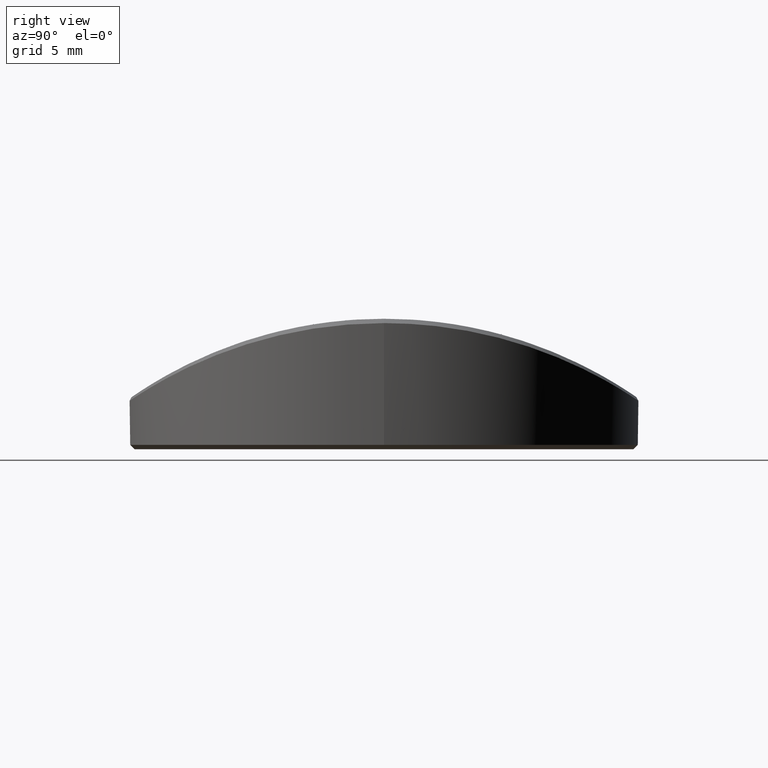
[diagram: clean part render]
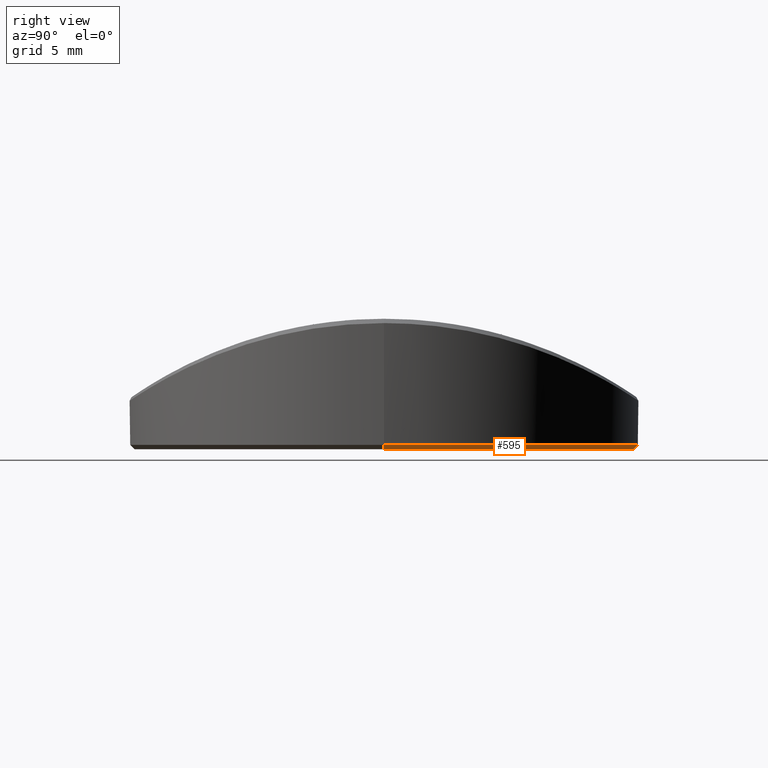
[diagram: same view with one face highlighted and labeled with its STEP entity id]
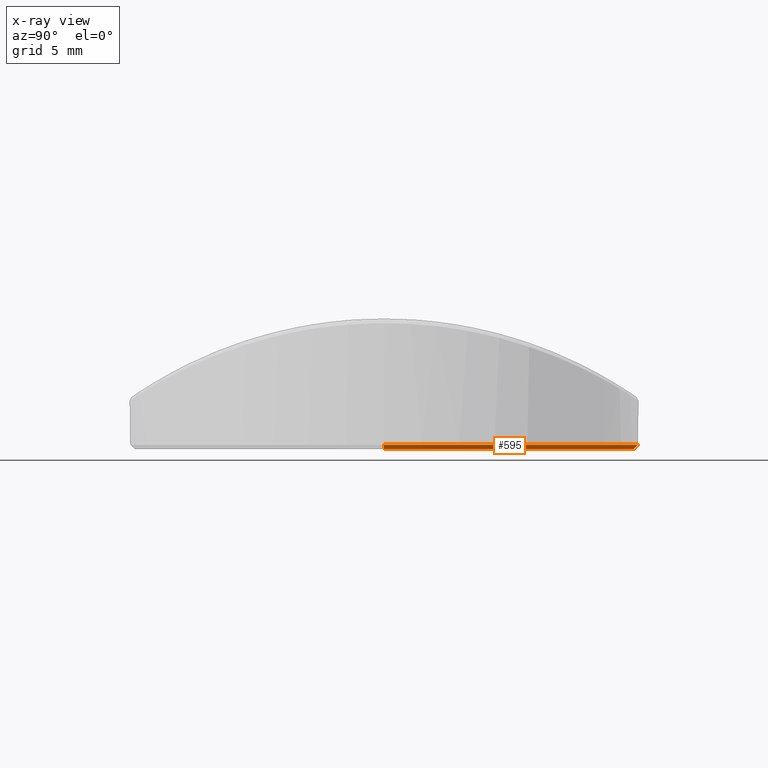
[diagram: x-ray of the same camera — body ghosted, the highlighted face saturated]
A machine part, right view. The second image highlights one B-rep face of the part: STEP entity #595.
The next image is the same camera in x-ray: the body ghosted, the highlighted face saturated — about 0% of this face is hidden behind the body in this view.
In plain terms, the highlighted conical surface has half-angle 45 deg.
Its self-contained STEP definition (entity closure, byte-faithful):
#2 = CARTESIAN_POINT ( 'NONE',  ( 0.000000000000000000, 0.000000000000000000, 0.2000000000000040079 ) ) ;
#26 = EDGE_LOOP ( 'NONE', ( #666, #1693, #457, #1291 ) ) ;
#86 = CONICAL_SURFACE ( 'NONE', #945, 11.69999999999999929, 0.7853981633974439491 ) ;
#170 = CARTESIAN_POINT ( 'NONE',  ( -11.69999999999999929, 1.432836755002403087E-15, 0.2000000000000040079 ) ) ;
#179 = CARTESIAN_POINT ( 'NONE',  ( -11.69999999999999929, 0.000000000000000000, 0.2000000000000040079 ) ) ;
#184 = FACE_OUTER_BOUND ( 'NONE', #26, .T. ) ;
#310 = CIRCLE ( 'NONE', #1788, 11.69999999999999929 ) ;
#395 = CARTESIAN_POINT ( 'NONE',  ( -11.49999999999999645, 1.420590287010929336E-15, 0.000000000000000000 ) ) ;
#457 = ORIENTED_EDGE ( 'NONE', *, *, #2012, .F. ) ;
#573 = VERTEX_POINT ( 'NONE', #1094 ) ;
#586 = VECTOR ( 'NONE', #2169, 1000.000000000000114 ) ;
#589 = CARTESIAN_POINT ( 'NONE',  ( 11.49999999999999645, 0.000000000000000000, 0.000000000000000000 ) ) ;
#595 = ADVANCED_FACE ( 'NONE', ( #184 ), #86, .T. ) ;
#663 = DIRECTION ( 'NONE',  ( 0.7071067811865443531, 0.000000000000000000, 0.7071067811865506814 ) ) ;
#666 = ORIENTED_EDGE ( 'NONE', *, *, #1566, .F. ) ;
#822 = LINE ( 'NONE', #170, #586 ) ;
#845 = LINE ( 'NONE', #2672, #2304 ) ;
#875 = VERTEX_POINT ( 'NONE', #395 ) ;
#945 = AXIS2_PLACEMENT_3D ( 'NONE', #1303, #1983, #1507 ) ;
#1050 = EDGE_CURVE ( 'NONE', #1534, #573, #845, .T. ) ;
#1094 = CARTESIAN_POINT ( 'NONE',  ( 11.69999999999999929, 1.432836755002403087E-15, 0.2000000000000040079 ) ) ;
#1141 = EDGE_CURVE ( 'NONE', #875, #1454, #822, .T. ) ;
#1291 = ORIENTED_EDGE ( 'NONE', *, *, #1050, .F. ) ;
#1303 = CARTESIAN_POINT ( 'NONE',  ( 0.000000000000000000, 0.000000000000000000, 0.2000000000000040079 ) ) ;
#1454 = VERTEX_POINT ( 'NONE', #179 ) ;
#1470 = DIRECTION ( 'NONE',  ( 1.000000000000000000, 0.000000000000000000, 0.000000000000000000 ) ) ;
#1507 = DIRECTION ( 'NONE',  ( 1.000000000000000000, 0.000000000000000000, 0.000000000000000000 ) ) ;
#1512 = DIRECTION ( 'NONE',  ( -0.000000000000000000, -0.000000000000000000, 1.000000000000000000 ) ) ;
#1534 = VERTEX_POINT ( 'NONE', #589 ) ;
#1566 = EDGE_CURVE ( 'NONE', #875, #1534, #1696, .T. ) ;
#1693 = ORIENTED_EDGE ( 'NONE', *, *, #1141, .T. ) ;
#1696 = CIRCLE ( 'NONE', #2832, 11.49999999999999645 ) ;
#1788 = AXIS2_PLACEMENT_3D ( 'NONE', #2, #1512, #2433 ) ;
#1983 = DIRECTION ( 'NONE',  ( -0.000000000000000000, -0.000000000000000000, 1.000000000000000000 ) ) ;
#2012 = EDGE_CURVE ( 'NONE', #573, #1454, #310, .T. ) ;
#2144 = CARTESIAN_POINT ( 'NONE',  ( 0.000000000000000000, 0.000000000000000000, 0.000000000000000000 ) ) ;
#2169 = DIRECTION ( 'NONE',  ( -0.7071067811865443531, 8.659560562354895880E-17, 0.7071067811865506814 ) ) ;
#2304 = VECTOR ( 'NONE', #663, 1000.000000000000114 ) ;
#2334 = DIRECTION ( 'NONE',  ( -0.000000000000000000, -0.000000000000000000, -1.000000000000000000 ) ) ;
#2433 = DIRECTION ( 'NONE',  ( 1.000000000000000000, 0.000000000000000000, 0.000000000000000000 ) ) ;
#2672 = CARTESIAN_POINT ( 'NONE',  ( 11.69999999999999929, 0.000000000000000000, 0.2000000000000040079 ) ) ;
#2832 = AXIS2_PLACEMENT_3D ( 'NONE', #2144, #2334, #1470 ) ;